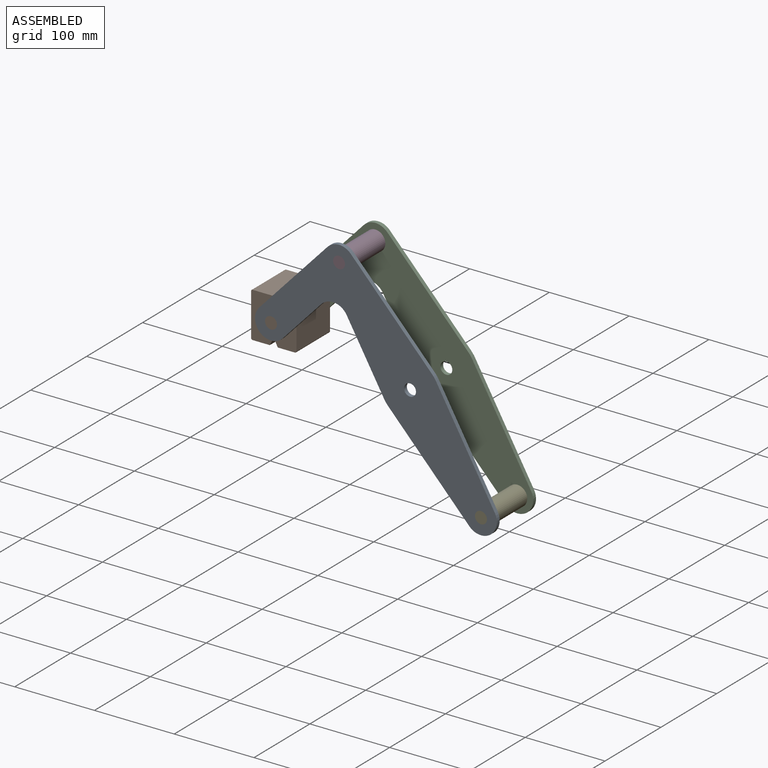
[diagram: assembled view]
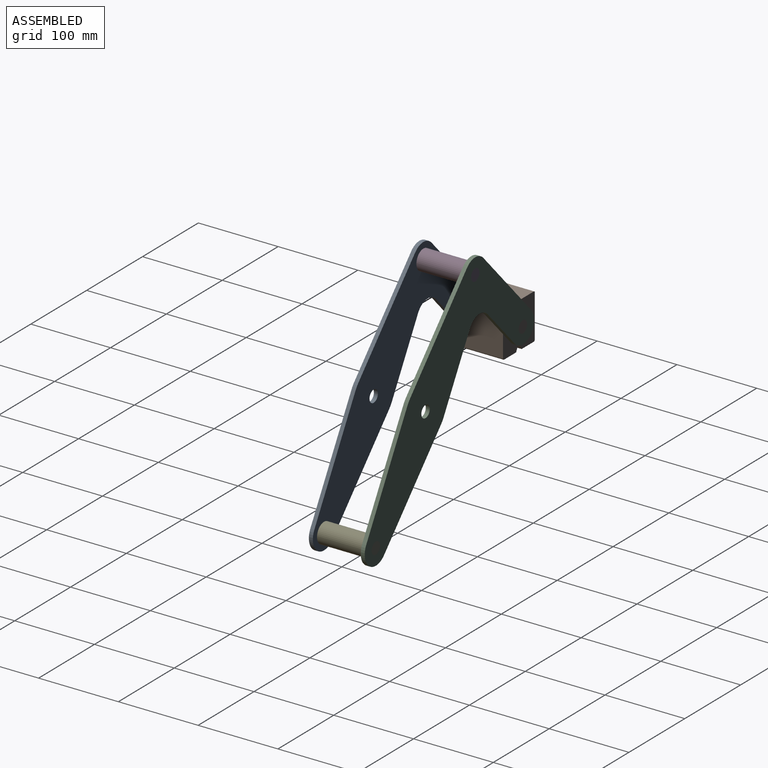
[diagram: assembled view, second angle]
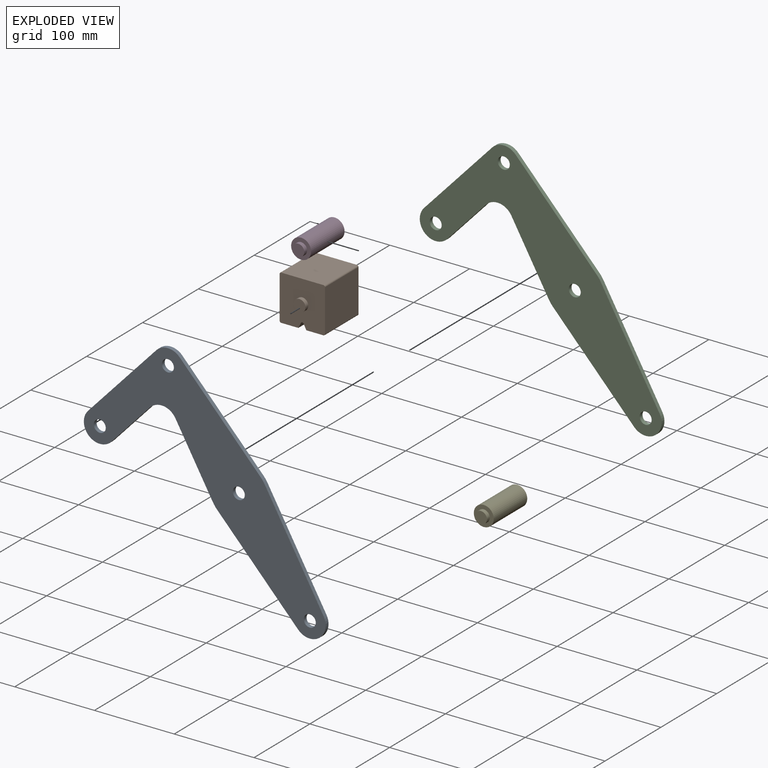
[diagram: exploded view]
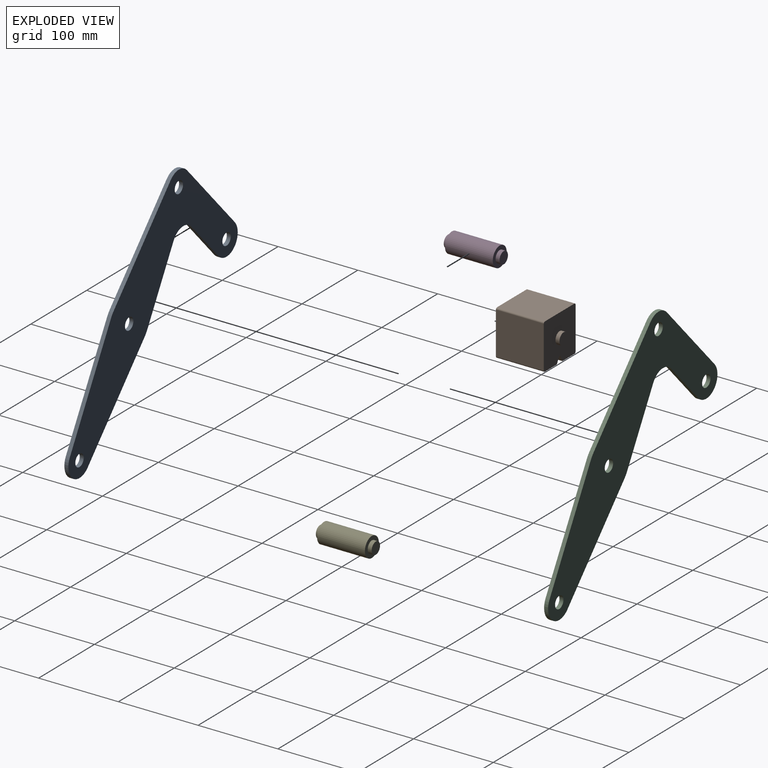
[diagram: exploded view, second angle]
ASSEMBLY  parts=5 mates=3
PART A: 18 faces, bbox 303.2x5x281.6 mm
  f0: cylinder r=20mm len=31.99mm, axis (0,1,0), area 187.2mm2, adj f1,f14,f16,f17
  f1: plane 82.25x46.85mm, normal (-0.87,0,-0.49), area 473.3mm2, adj f0,f2,f16,f17
  f2: cylinder r=37.5mm len=7.05mm, axis (0,1,0), area 43.8mm2, adj f1,f3,f16,f17
  f3: plane 108.83x101.73mm, normal (-0.73,0,-0.68), area 744.9mm2, adj f2,f4,f16,f17
  f4: cylinder r=20mm len=34.61mm, axis (0,1,0), area 290.8mm2, adj f3,f5,f16,f17
  f5: plane 129.45x73.74mm, normal (0.87,0,0.49), area 744.9mm2, adj f4,f6,f16,f17
  f6: cylinder r=37.5mm len=7.05mm, axis (0,1,0), area 43.8mm2, adj f5,f7,f16,f17
  f7: plane 108.83x101.73mm, normal (0.73,0,0.68), area 744.9mm2, adj f6,f8,f16,f17
  f8: cylinder r=20mm len=29.22mm, axis (0,1,0), area 163.8mm2, adj f7,f9,f16,f17
  f9: plane 91.32x85.36mm, normal (-0.73,0,0.68), area 625mm2, adj f8,f10,f16,f17
  f10: cylinder r=20mm len=34.61mm, axis (0,1,0), area 314.2mm2, adj f9,f14,f16,f17
  f11: cylinder r=7.5mm len=15mm, axis (0,1,0), area 235.6mm2, adj f16,f17
  f12: cylinder r=7.5mm len=15mm, axis (0,1,0), area 235.6mm2, adj f16,f17
  f13: cylinder r=7.5mm len=15mm, axis (0,1,0), area 235.6mm2, adj f16,f17
  f14: plane 51.64x48.27mm, normal (0.73,0,-0.68), area 353.4mm2, adj f0,f10,f16,f17
  f15: cylinder r=7.5mm len=15mm, axis (0,1,0), area 235.6mm2, adj f16,f17
  f16: plane 303.25x281.57mm, normal (0,-1,0), area 22917.3mm2, adj f0,f1,f2,f3,f4,f5,f6,f7
  f17: plane 303.25x281.57mm, normal (0,1,0), area 22917.3mm2, adj f0,f1,f2,f3,f4,f5,f6,f7
PART B: 18 faces, bbox 56.9x70x56.9 mm
  f0: plane 60x52.93mm, normal (-1,0,0), area 3175.9mm2, adj f7,f10,f13,f17
  f1: plane 60x52.93mm, normal (0,0,1), area 3175.9mm2, adj f7,f10,f13,f14
  f2: plane 60x52.93mm, normal (1,0,0), area 3175.9mm2, adj f7,f10,f14,f15
  f3: plane 60x21.47mm, normal (0,0,-1), area 1287.9mm2, adj f4,f7,f10,f15
  f4: plane 60x6.42mm, normal (-0.89,0,-0.45), area 430.8mm2, adj f3,f7,f10,f16
  f5: plane 60x6.42mm, normal (0.89,0,-0.45), area 430.8mm2, adj f6,f7,f10,f16
  f6: plane 60x21.47mm, normal (0,0,-1), area 1287.9mm2, adj f5,f7,f10,f17
  f7: plane 56.93x56.93mm, normal (0,-1,0), area 3014.5mm2, adj f0,f1,f2,f3,f4,f5,f6,f9
  f8: plane 15x15mm, normal (0,-1,0), area 176.7mm2, adj f9
  f9: cylinder r=7.5mm len=15mm, axis (0,1,0), area 235.6mm2, adj f7,f8
  f10: plane 56.93x56.93mm, normal (0,1,0), area 3014.5mm2, adj f0,f1,f2,f3,f4,f5,f6,f12
  f11: plane 15x15mm, normal (0,1,0), area 176.7mm2, adj f12
  f12: cylinder r=7.5mm len=15mm, axis (0,-1,0), area 235.6mm2, adj f10,f11
  f13: cylinder r=2mm len=60mm, axis (0,1,0), area 188.5mm2, adj f0,f1,f7,f10
  f14: cylinder r=2mm len=60mm, axis (0,-1,0), area 188.5mm2, adj f1,f2,f7,f10
  f15: cylinder r=2mm len=60mm, axis (0,1,0), area 188.5mm2, adj f2,f3,f7,f10
  f16: cylinder r=2mm len=60mm, axis (0,-1,0), area 265.7mm2, adj f4,f5,f7,f10
  f17: cylinder r=2mm len=60mm, axis (0,-1,0), area 188.5mm2, adj f0,f6,f7,f10
PART C: same geometry as A
PART D: 7 faces, bbox 25x70x25 mm
  f0: cylinder r=12.5mm len=60mm, axis (0,-1,0), area 4712.4mm2, adj f1,f4
  f1: plane 25x25mm, normal (0,-1,0), area 314.2mm2, adj f0,f2
  f2: cylinder r=7.5mm len=15mm, axis (0,1,0), area 235.6mm2, adj f1,f3
  f3: plane 15x15mm, normal (0,-1,0), area 176.7mm2, adj f2
  f4: plane 25x25mm, normal (0,1,0), area 314.2mm2, adj f0,f5
  f5: cylinder r=7.5mm len=15mm, axis (0,-1,0), area 235.6mm2, adj f4,f6
  f6: plane 15x15mm, normal (0,1,0), area 176.7mm2, adj f5
PART E: same geometry as D
PLACE A t=(0,-30,0)mm fixed
PLACE B t=(0,-30,0)mm
PLACE C t=(0,35,0)mm
PLACE D t=(0,-30,0)mm
PLACE E t=(177.89,-30,-241.57)mm
MATE fastened A.f4 <-> E.f0  axis (0,1,0) through (88.95,-30,-120.78)mm
MATE revolute B.f9 <-> A.f10  axis (0,-1,0) through (-174.3,-30,29.47)mm
MATE fastened D.f0 <-> C.f8  axis (0,1,0) through (-88.95,30,120.78)mm
